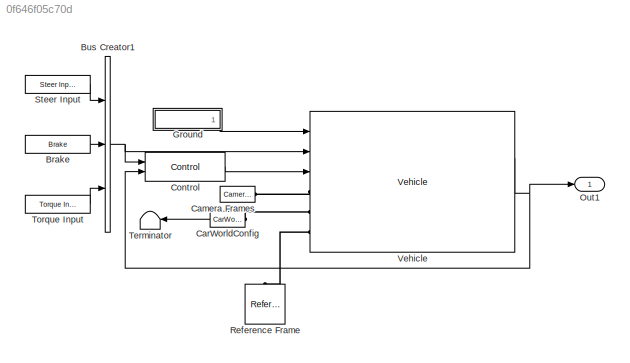
MODEL slx_0f646f05c70d
KIND model
CONFIG AbsTol = auto
CONFIG EnableMultiTasking = on
CONFIG FixedStep = auto
CONFIG MaxStep = auto
CONFIG MinStep = auto
CONFIG RelTol = 1e-3
CONFIG SampleTimeConstraint = Unconstrained
CONFIG SolverName = VariableStepAuto
CONFIG StartTime = 0.0
CONFIG StopTime = 10.0
BLOCK [Reference] Brake  REF=sm_car_lib/Inputs/DrvBus/Brake  (lib defined in slx_05426f0848b6, slx_5dc2867fb1c9)
  Ports = [0, 1]
  SourceBlock = sm_car_lib/Inputs/DrvBus/Brake
BLOCK [BusCreator] Bus Creator1
  DisplayOption = bar
  InheritFromInputs = on
  Inputs = 3
  Ports = [3, 1]
BLOCK [Reference] Camera Frames  REF=Camera_Frame_Definitions/Camera Frames
  Ports = [0, 0, 0, 0, 0, 0, 1]
  SourceBlock = Camera_Frame_Definitions/Camera Frames
  SourceType = Camera Frame Definitions
BLOCK [Reference] CarWorldConfig  REF=sm_car_lib/Environment/CarWorldConfig  (lib defined in slx_05426f0848b6, slx_5dc2867fb1c9)
  Ports = [0, 1, 0, 0, 0, 1]
  SourceBlock = sm_car_lib/Environment/CarWorldConfig
  SourceType = Environment
BLOCK [Reference] Control  REF=sm_car_lib/Control/Control  (lib defined in slx_05426f0848b6, slx_5dc2867fb1c9)
  AttributesFormatString = %<popup_brake_control>
  Ports = [2, 1]
  SourceBlock = sm_car_lib/Control/Control
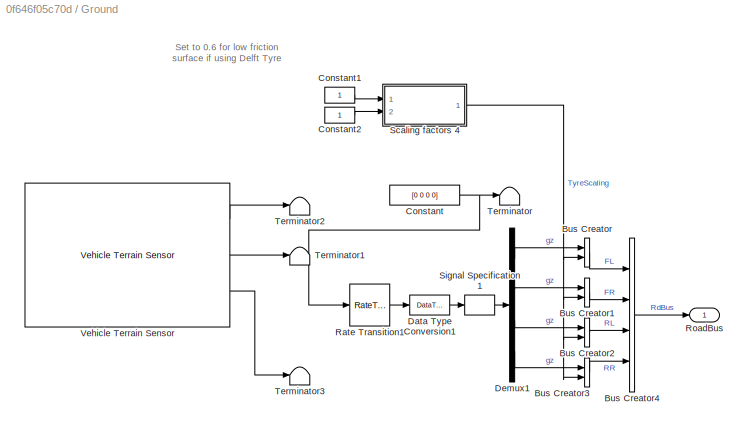
BLOCK [SubSystem] Ground
  Ports = [0, 1]
  RequestExecContextInheritance = off
BLOCK [BusCreator] Ground/Bus Creator
  DisplayOption = bar
  InheritFromInputs = on
  Inputs = 2
  Ports = [2, 1]
BLOCK [BusCreator] Ground/Bus Creator1
  DisplayOption = bar
  InheritFromInputs = on
  Inputs = 2
  Ports = [2, 1]
BLOCK [BusCreator] Ground/Bus Creator2
  DisplayOption = bar
  InheritFromInputs = on
  Inputs = 2
  Ports = [2, 1]
BLOCK [BusCreator] Ground/Bus Creator3
  DisplayOption = bar
  InheritFromInputs = on
  Inputs = 2
  Ports = [2, 1]
BLOCK [BusCreator] Ground/Bus Creator4
  DisplayOption = bar
  InheritFromInputs = on
  Inputs = 4
  Ports = [4, 1]
BLOCK [Constant] Ground/Constant
  Value = [0 0 0 0]
BLOCK [Constant] Ground/Constant1
  NameLocation = top
BLOCK [Constant] Ground/Constant2
BLOCK [DataTypeConversion] Ground/Data Type Conversion1
  RndMeth = Floor
  SaturateOnIntegerOverflow = off
BLOCK [Demux] Ground/Demux1
  Ports = [1, 4]
BLOCK [RateTransition] Ground/Rate Transition1
BLOCK [Outport] Ground/RoadBus
  VectorParamsAs1DForOutWhenUnconnected = off
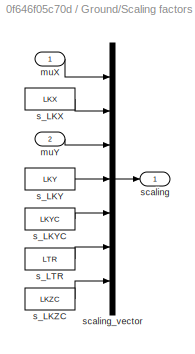
BLOCK [SubSystem] Ground/Scaling factors 4
  Ports = [2, 1]
  RequestExecContextInheritance = off
BLOCK [Inport] Ground/Scaling factors 4/muX
BLOCK [Inport] Ground/Scaling factors 4/muY
  Port = 2
BLOCK [Constant] Ground/Scaling factors 4/s_LKX
  Value = LKX
BLOCK [Constant] Ground/Scaling factors 4/s_LKY
  Value = LKY
BLOCK [Constant] Ground/Scaling factors 4/s_LKYC
  Value = LKYC
BLOCK [Constant] Ground/Scaling factors 4/s_LKZC
  Value = LKZC
BLOCK [Constant] Ground/Scaling factors 4/s_LTR
  Value = LTR
BLOCK [Outport] Ground/Scaling factors 4/scaling
  VectorParamsAs1DForOutWhenUnconnected = off
BLOCK [Mux] Ground/Scaling factors 4/scaling_vector
  DisplayOption = bar
  Inputs = 7
  Ports = [7, 1]
BLOCK [SignalSpecification] Ground/Signal Specification1
  Unit = m
BLOCK [Terminator] Ground/Terminator
BLOCK [Terminator] Ground/Terminator1
  Commented = on
BLOCK [Terminator] Ground/Terminator2
  Commented = on
BLOCK [Terminator] Ground/Terminator3
  Commented = on
BLOCK [Reference] Ground/Vehicle Terrain Sensor  REF=sim3dlib/Vehicle Terrain Sensor
  Commented = on
  Ports = [0, 3]
  SourceBlock = sim3dlib/Vehicle Terrain Sensor
  SourceProductBaseCode = VE,AE,DR,UV,VE
  SourceType = Vehicle Terrain Sensor
BLOCK [Outport] Out1
  OutDataTypeStr = Bus: VehicleBusDef
  VectorParamsAs1DForOutWhenUnconnected = off
BLOCK [Reference] Reference Frame  REF=sm_lib/Frames and
Transforms/Reference
Frame
  NameLocation = right
  Ports = [0, 0, 0, 0, 0, 0, 1]
  SourceBlock = sm_lib/Frames and\nTransforms/Reference\nFrame
  SourceProductBaseCode = MS
  SourceType = Reference\nFrame
BLOCK [Reference] Steer Input  REF=sm_car_lib/Inputs/DrvBus/Steer Input  (lib defined in slx_05426f0848b6, slx_5dc2867fb1c9)
  AttributesFormatString = %<popup_steer_input>
  Ports = [0, 1]
  SourceBlock = sm_car_lib/Inputs/DrvBus/Steer Input
BLOCK [Terminator] Terminator
  NameLocation = top
BLOCK [Reference] Torque Input  REF=sm_car_lib/Inputs/DrvBus/Torque Input  (lib defined in slx_05426f0848b6, slx_5dc2867fb1c9)
  AttributesFormatString = %<popup_torque_input>
  Ports = [0, 1]
  SourceBlock = sm_car_lib/Inputs/DrvBus/Torque Input
BLOCK [Reference] Vehicle  REF=Vehicle_Axle2/Vehicle
  Ports = [3, 1, 0, 0, 0, 3, 1]
  SourceBlock = Vehicle_Axle2/Vehicle
  SourceType = Vehicle with Two Axles
  Tag = PublishSubsystem
ANNOTATION Ground: Set to 0.6 for low friction surface if using Delft Tyre
LINE Brake:1 -> Bus Creator1:2
NET Bus Creator1:1 -> Control:1, Vehicle:2
LINE CarWorldConfig:1 -> Terminator:1
LINE Control:1 -> Vehicle:3
LINE Ground/Bus Creator1:1 -> Ground/Bus Creator4:2
LINE Ground/Bus Creator2:1 -> Ground/Bus Creator4:3
LINE Ground/Bus Creator3:1 -> Ground/Bus Creator4:4
LINE Ground/Bus Creator4:1 -> Ground/RoadBus:1
LINE Ground/Bus Creator:1 -> Ground/Bus Creator4:1
LINE Ground/Constant1:1 -> Ground/Scaling factors 4:1
LINE Ground/Constant2:1 -> Ground/Scaling factors 4:2
NET Ground/Constant:1 -> Ground/Rate Transition1:1, Ground/Terminator:1
LINE Ground/Data Type Conversion1:1 -> Ground/Signal Specification1:1
LINE Ground/Demux1:1 -> Ground/Bus Creator:1
LINE Ground/Demux1:2 -> Ground/Bus Creator1:1
LINE Ground/Demux1:3 -> Ground/Bus Creator2:1
LINE Ground/Demux1:4 -> Ground/Bus Creator3:1
LINE Ground/Rate Transition1:1 -> Ground/Data Type Conversion1:1
LINE Ground/Scaling factors 4/muX:1 -> Ground/Scaling factors 4/scaling_vector:1
LINE Ground/Scaling factors 4/muY:1 -> Ground/Scaling factors 4/scaling_vector:3
LINE Ground/Scaling factors 4/s_LKX:1 -> Ground/Scaling factors 4/scaling_vector:2
LINE Ground/Scaling factors 4/s_LKY:1 -> Ground/Scaling factors 4/scaling_vector:4
LINE Ground/Scaling factors 4/s_LKYC:1 -> Ground/Scaling factors 4/scaling_vector:5
LINE Ground/Scaling factors 4/s_LKZC:1 -> Ground/Scaling factors 4/scaling_vector:7
LINE Ground/Scaling factors 4/s_LTR:1 -> Ground/Scaling factors 4/scaling_vector:6
LINE Ground/Scaling factors 4/scaling_vector:1 -> Ground/Scaling factors 4/scaling:1
NET Ground/Scaling factors 4:1 -> Ground/Bus Creator1:2, Ground/Bus Creator2:2, Ground/Bus Creator3:2, Ground/Bus Creator:2
LINE Ground/Signal Specification1:1 -> Ground/Demux1:1
LINE Ground/Vehicle Terrain Sensor:1 -> Ground/Terminator2:1
LINE Ground/Vehicle Terrain Sensor:2 -> Ground/Terminator1:1
LINE Ground/Vehicle Terrain Sensor:3 -> Ground/Terminator3:1
LINE Ground:1 -> Vehicle:1
LINE Steer Input:1 -> Bus Creator1:1
LINE Torque Input:1 -> Bus Creator1:3
NET Vehicle:1 -> Control:2, Out1:1
PLINE Camera Frames:RConn1 -- Vehicle:LConn1
PLINE CarWorldConfig:LConn1 -- Vehicle:LConn2
PLINE Reference Frame:RConn1 -- Vehicle:LConn3
note: NET lines group one-source signal fan-out (src -> all destinations, sorted); 1:1 wires keep LINE
